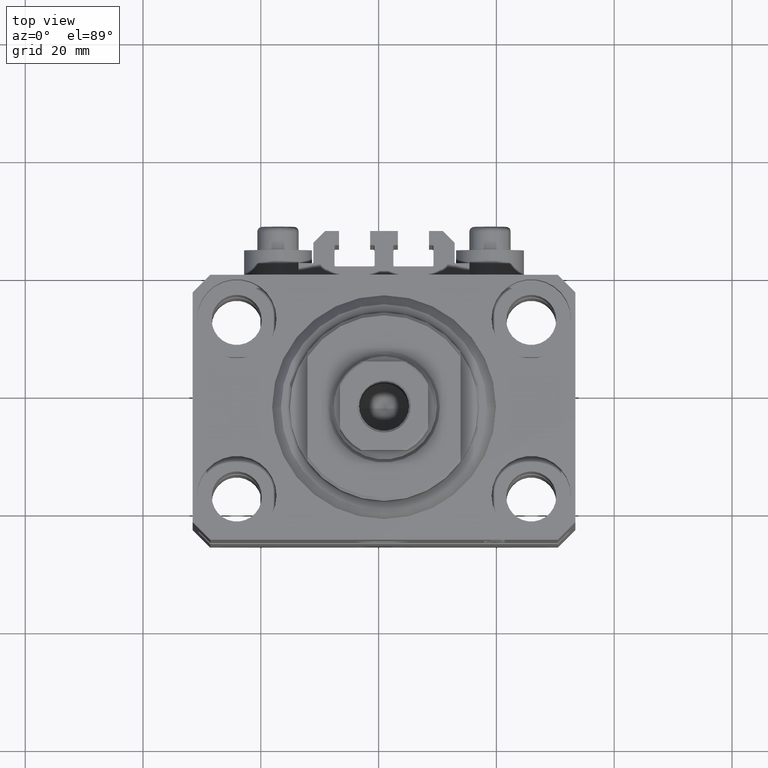
[diagram: clean part render]
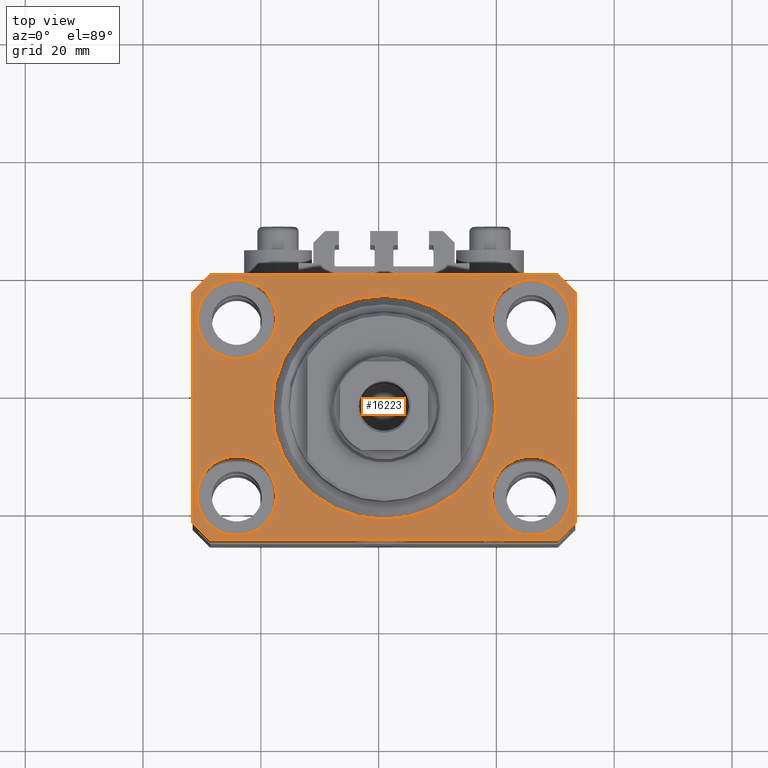
[diagram: same view with one face highlighted and labeled with its STEP entity id]
A machine part, top view. The second image highlights one B-rep face of the part: STEP entity #16223.
In plain terms, the highlighted planar face has unit normal (0, 0, 1).
Its self-contained STEP definition (entity closure, byte-faithful):
#100 = CARTESIAN_POINT ( 'NONE',  ( 29.49999999999707967, 22.49999999999951328, 0.000000000000000000 ) ) ;
#631 = VERTEX_POINT ( 'NONE', #6732 ) ;
#900 = CARTESIAN_POINT ( 'NONE',  ( 18.25000000004154543, 15.00000000000000888, 0.000000000000000000 ) ) ;
#1019 = CIRCLE ( 'NONE', #14624, 6.750000000041541881 ) ;
#1318 = EDGE_CURVE ( 'NONE', #8552, #30658, #36185, .T. ) ;
#1592 = ORIENTED_EDGE ( 'NONE', *, *, #40249, .F. ) ;
#2026 = AXIS2_PLACEMENT_3D ( 'NONE', #26744, #41509, #41748 ) ;
#2224 = CARTESIAN_POINT ( 'NONE',  ( -31.75000000004154899, -15.00000000000000000, 0.000000000000000000 ) ) ;
#2565 = EDGE_CURVE ( 'NONE', #631, #39402, #3594, .T. ) ;
#2705 = EDGE_CURVE ( 'NONE', #17058, #5536, #15032, .T. ) ;
#2988 = DIRECTION ( 'NONE',  ( 1.000000000000000000, 0.000000000000000000, 0.000000000000000000 ) ) ;
#3174 = DIRECTION ( 'NONE',  ( 0.000000000000000000, 0.000000000000000000, 1.000000000000000000 ) ) ;
#3488 = DIRECTION ( 'NONE',  ( 1.000000000000000000, 0.000000000000000000, 0.000000000000000000 ) ) ;
#3594 = CIRCLE ( 'NONE', #17313, 6.749999999958452790 ) ;
#3698 = CARTESIAN_POINT ( 'NONE',  ( -32.49999999999650413, -19.49999999999949907, 0.000000000000000000 ) ) ;
#4016 = AXIS2_PLACEMENT_3D ( 'NONE', #22827, #37361, #33316 ) ;
#4060 = CARTESIAN_POINT ( 'NONE',  ( -25.00000000000000355, 15.00000000000000000, 0.000000000000000000 ) ) ;
#4380 = EDGE_CURVE ( 'NONE', #20125, #17135, #45980, .T. ) ;
#4529 = CARTESIAN_POINT ( 'NONE',  ( 32.49999999999651124, -19.49999999999949196, 0.000000000000000000 ) ) ;
#4703 = CARTESIAN_POINT ( 'NONE',  ( 19.00000000000000000, 0.000000000000000000, 0.000000000000000000 ) ) ;
#4776 = EDGE_CURVE ( 'NONE', #39402, #631, #25008, .T. ) ;
#5001 = DIRECTION ( 'NONE',  ( 1.000000000000000000, 0.000000000000000000, 0.000000000000000000 ) ) ;
#5536 = VERTEX_POINT ( 'NONE', #19082 ) ;
#5578 = AXIS2_PLACEMENT_3D ( 'NONE', #12441, #42486, #31281 ) ;
#5635 = DIRECTION ( 'NONE',  ( 0.000000000000000000, 0.000000000000000000, 1.000000000000000000 ) ) ;
#5735 = ORIENTED_EDGE ( 'NONE', *, *, #2705, .F. ) ;
#6670 = VERTEX_POINT ( 'NONE', #18162 ) ;
#6732 = CARTESIAN_POINT ( 'NONE',  ( 31.74999999995845101, 15.00000000000000888, 0.000000000000000000 ) ) ;
#6851 = CARTESIAN_POINT ( 'NONE',  ( 29.49999999999650413, -22.49999999999949196, 0.000000000000000000 ) ) ;
#7312 = ORIENTED_EDGE ( 'NONE', *, *, #42420, .T. ) ;
#7613 = CARTESIAN_POINT ( 'NONE',  ( -32.49999999999650413, 19.49999999999949907, 0.000000000000000000 ) ) ;
#7960 = EDGE_LOOP ( 'NONE', ( #22281, #42460 ) ) ;
#8514 = CIRCLE ( 'NONE', #16904, 6.750000000022533087 ) ;
#8552 = VERTEX_POINT ( 'NONE', #29850 ) ;
#8705 = DIRECTION ( 'NONE',  ( 1.000000000000000000, 0.000000000000000000, 0.000000000000000000 ) ) ;
#8888 = VECTOR ( 'NONE', #28338, 1000.000000000000000 ) ;
#9084 = DIRECTION ( 'NONE',  ( 1.334402673828349134E-14, 1.000000000000000000, 0.000000000000000000 ) ) ;
#9295 = CIRCLE ( 'NONE', #13859, 6.750000000022533087 ) ;
#9678 = DIRECTION ( 'NONE',  ( 0.000000000000000000, 0.000000000000000000, 1.000000000000000000 ) ) ;
#9749 = VECTOR ( 'NONE', #24046, 1000.000000000000000 ) ;
#9884 = ORIENTED_EDGE ( 'NONE', *, *, #18870, .F. ) ;
#9954 = CARTESIAN_POINT ( 'NONE',  ( 32.49999999999702993, 19.49999999999945999, 0.000000000000000000 ) ) ;
#10286 = EDGE_LOOP ( 'NONE', ( #28086, #19521 ) ) ;
#11437 = CARTESIAN_POINT ( 'NONE',  ( -29.49999999999650413, -22.49999999999949907, 0.000000000000000000 ) ) ;
#11725 = CIRCLE ( 'NONE', #36858, 6.750000000041541881 ) ;
#11835 = FACE_BOUND ( 'NONE', #36906, .T. ) ;
#12025 = AXIS2_PLACEMENT_3D ( 'NONE', #24690, #21349, #39225 ) ;
#12416 = ORIENTED_EDGE ( 'NONE', *, *, #4380, .T. ) ;
#12441 = CARTESIAN_POINT ( 'NONE',  ( 25.00000000000000355, -15.00000000000000000, 0.000000000000000000 ) ) ;
#12647 = ORIENTED_EDGE ( 'NONE', *, *, #30534, .T. ) ;
#12673 = DIRECTION ( 'NONE',  ( -0.7071067811865474617, -0.7071067811865474617, 0.000000000000000000 ) ) ;
#13301 = CARTESIAN_POINT ( 'NONE',  ( -19.00000000000000000, 2.326828918379970970E-15, 0.000000000000000000 ) ) ;
#13859 = AXIS2_PLACEMENT_3D ( 'NONE', #17808, #46424, #3488 ) ;
#14144 = LINE ( 'NONE', #28705, #47046 ) ;
#14194 = DIRECTION ( 'NONE',  ( 1.000000000000000000, 0.000000000000000000, 0.000000000000000000 ) ) ;
#14624 = AXIS2_PLACEMENT_3D ( 'NONE', #39429, #3174, #17735 ) ;
#14883 = DIRECTION ( 'NONE',  ( -1.000000000000000000, -2.352167425053553784E-16, 0.000000000000000000 ) ) ;
#15032 = CIRCLE ( 'NONE', #21126, 6.749999999977465137 ) ;
#15216 = EDGE_LOOP ( 'NONE', ( #5735, #9884 ) ) ;
#15426 = FACE_BOUND ( 'NONE', #7960, .T. ) ;
#15665 = ORIENTED_EDGE ( 'NONE', *, *, #34061, .F. ) ;
#15740 = DIRECTION ( 'NONE',  ( 0.000000000000000000, 0.000000000000000000, 1.000000000000000000 ) ) ;
#15790 = LINE ( 'NONE', #41772, #20334 ) ;
#16223 = ADVANCED_FACE ( 'NONE', ( #44535, #29742, #15426, #44766, #11835, #33083 ), #26405, .T. ) ;
#16405 = VECTOR ( 'NONE', #9084, 1000.000000000000000 ) ;
#16730 = CARTESIAN_POINT ( 'NONE',  ( 32.49999999999651124, -19.49999999999949196, 0.000000000000000000 ) ) ;
#16904 = AXIS2_PLACEMENT_3D ( 'NONE', #4060, #15740, #5001 ) ;
#17025 = CIRCLE ( 'NONE', #5578, 6.749999999977465137 ) ;
#17058 = VERTEX_POINT ( 'NONE', #31911 ) ;
#17135 = VERTEX_POINT ( 'NONE', #34552 ) ;
#17313 = AXIS2_PLACEMENT_3D ( 'NONE', #34023, #5635, #34728 ) ;
#17735 = DIRECTION ( 'NONE',  ( 1.000000000000000000, 0.000000000000000000, 0.000000000000000000 ) ) ;
#17776 = EDGE_LOOP ( 'NONE', ( #7312, #12647, #39399, #41445, #31060, #40352, #18592, #12416 ) ) ;
#17808 = CARTESIAN_POINT ( 'NONE',  ( -25.00000000000000355, 15.00000000000000000, 0.000000000000000000 ) ) ;
#18162 = CARTESIAN_POINT ( 'NONE',  ( -32.49999999999650413, 19.49999999999949907, 0.000000000000000000 ) ) ;
#18592 = ORIENTED_EDGE ( 'NONE', *, *, #26378, .T. ) ;
#18608 = CARTESIAN_POINT ( 'NONE',  ( -31.75000000002253842, 15.00000000000000000, 0.000000000000000000 ) ) ;
#18705 = LINE ( 'NONE', #100, #28415 ) ;
#18722 = EDGE_CURVE ( 'NONE', #23000, #45112, #1019, .T. ) ;
#18870 = EDGE_CURVE ( 'NONE', #5536, #17058, #17025, .T. ) ;
#19082 = CARTESIAN_POINT ( 'NONE',  ( 18.25000000002253842, -15.00000000000000000, 0.000000000000000000 ) ) ;
#19147 = ORIENTED_EDGE ( 'NONE', *, *, #38636, .F. ) ;
#19487 = VERTEX_POINT ( 'NONE', #11437 ) ;
#19521 = ORIENTED_EDGE ( 'NONE', *, *, #18722, .F. ) ;
#20125 = VERTEX_POINT ( 'NONE', #44667 ) ;
#20334 = VECTOR ( 'NONE', #12673, 1000.000000000000114 ) ;
#20670 = CARTESIAN_POINT ( 'NONE',  ( 25.00000000000000355, -15.00000000000000000, 0.000000000000000000 ) ) ;
#20960 = DIRECTION ( 'NONE',  ( 0.7071067811865474617, -0.7071067811865474617, 0.000000000000000000 ) ) ;
#21126 = AXIS2_PLACEMENT_3D ( 'NONE', #20670, #9678, #2988 ) ;
#21349 = DIRECTION ( 'NONE',  ( 0.000000000000000000, 0.000000000000000000, 1.000000000000000000 ) ) ;
#22168 = DIRECTION ( 'NONE',  ( 0.000000000000000000, -1.000000000000000000, 0.000000000000000000 ) ) ;
#22281 = ORIENTED_EDGE ( 'NONE', *, *, #2565, .F. ) ;
#22606 = CIRCLE ( 'NONE', #2026, 19.00000000000000000 ) ;
#22827 = CARTESIAN_POINT ( 'NONE',  ( 0.000000000000000000, 0.000000000000000000, 0.000000000000000000 ) ) ;
#23000 = VERTEX_POINT ( 'NONE', #2224 ) ;
#23962 = EDGE_CURVE ( 'NONE', #45112, #23000, #11725, .T. ) ;
#24046 = DIRECTION ( 'NONE',  ( -0.7071067811865352493, 0.7071067811865597852, 0.000000000000000000 ) ) ;
#24134 = VECTOR ( 'NONE', #20960, 1000.000000000000114 ) ;
#24690 = CARTESIAN_POINT ( 'NONE',  ( 24.99999999999999645, 15.00000000000000888, 0.000000000000000000 ) ) ;
#24964 = CARTESIAN_POINT ( 'NONE',  ( -18.24999999995846167, -15.00000000000000000, 0.000000000000000000 ) ) ;
#25008 = CIRCLE ( 'NONE', #12025, 6.749999999958452790 ) ;
#25984 = LINE ( 'NONE', #7613, #36374 ) ;
#26378 = EDGE_CURVE ( 'NONE', #30658, #20125, #44481, .T. ) ;
#26405 = PLANE ( 'NONE',  #4016 ) ;
#26744 = CARTESIAN_POINT ( 'NONE',  ( 0.000000000000000000, 0.000000000000000000, 0.000000000000000000 ) ) ;
#28052 = DIRECTION ( 'NONE',  ( 0.000000000000000000, 0.000000000000000000, 1.000000000000000000 ) ) ;
#28086 = ORIENTED_EDGE ( 'NONE', *, *, #23962, .F. ) ;
#28261 = VERTEX_POINT ( 'NONE', #3698 ) ;
#28282 = CARTESIAN_POINT ( 'NONE',  ( -25.00000000000000355, -15.00000000000000000, 0.000000000000000000 ) ) ;
#28338 = DIRECTION ( 'NONE',  ( 0.7071067811865483499, 0.7071067811865466846, 0.000000000000000000 ) ) ;
#28415 = VECTOR ( 'NONE', #14883, 1000.000000000000000 ) ;
#28687 = EDGE_LOOP ( 'NONE', ( #46944, #1592 ) ) ;
#28705 = CARTESIAN_POINT ( 'NONE',  ( -29.49999999999650413, -22.49999999999949907, 0.000000000000000000 ) ) ;
#28823 = CARTESIAN_POINT ( 'NONE',  ( -32.49999999999650413, -19.49999999999949907, 0.000000000000000000 ) ) ;
#29095 = VERTEX_POINT ( 'NONE', #31223 ) ;
#29742 = FACE_BOUND ( 'NONE', #15216, .T. ) ;
#29850 = CARTESIAN_POINT ( 'NONE',  ( 29.49999999999650413, -22.49999999999949196, 0.000000000000000000 ) ) ;
#30534 = EDGE_CURVE ( 'NONE', #31606, #6670, #15790, .T. ) ;
#30640 = CARTESIAN_POINT ( 'NONE',  ( 0.000000000000000000, 0.000000000000000000, 0.000000000000000000 ) ) ;
#30658 = VERTEX_POINT ( 'NONE', #4529 ) ;
#30914 = EDGE_CURVE ( 'NONE', #28261, #19487, #42647, .T. ) ;
#30984 = VERTEX_POINT ( 'NONE', #4703 ) ;
#31060 = ORIENTED_EDGE ( 'NONE', *, *, #31296, .T. ) ;
#31223 = CARTESIAN_POINT ( 'NONE',  ( -18.24999999997747224, 15.00000000000000000, 0.000000000000000000 ) ) ;
#31281 = DIRECTION ( 'NONE',  ( 1.000000000000000000, 0.000000000000000000, 0.000000000000000000 ) ) ;
#31296 = EDGE_CURVE ( 'NONE', #19487, #8552, #14144, .T. ) ;
#31606 = VERTEX_POINT ( 'NONE', #40306 ) ;
#31911 = CARTESIAN_POINT ( 'NONE',  ( 31.74999999997746869, -15.00000000000000000, 0.000000000000000000 ) ) ;
#33083 = FACE_OUTER_BOUND ( 'NONE', #17776, .T. ) ;
#33316 = DIRECTION ( 'NONE',  ( 1.000000000000000000, 0.000000000000000000, -0.000000000000000000 ) ) ;
#34023 = CARTESIAN_POINT ( 'NONE',  ( 24.99999999999999645, 15.00000000000000888, 0.000000000000000000 ) ) ;
#34061 = EDGE_CURVE ( 'NONE', #46087, #30984, #22606, .T. ) ;
#34552 = CARTESIAN_POINT ( 'NONE',  ( 29.49999999999707967, 22.49999999999951328, 0.000000000000000000 ) ) ;
#34728 = DIRECTION ( 'NONE',  ( 1.000000000000000000, 0.000000000000000000, 0.000000000000000000 ) ) ;
#35326 = EDGE_CURVE ( 'NONE', #6670, #28261, #25984, .T. ) ;
#36185 = LINE ( 'NONE', #6851, #8888 ) ;
#36374 = VECTOR ( 'NONE', #22168, 1000.000000000000000 ) ;
#36858 = AXIS2_PLACEMENT_3D ( 'NONE', #28282, #28052, #14194 ) ;
#36906 = EDGE_LOOP ( 'NONE', ( #19147, #15665 ) ) ;
#37361 = DIRECTION ( 'NONE',  ( 0.000000000000000000, 0.000000000000000000, 1.000000000000000000 ) ) ;
#37954 = DIRECTION ( 'NONE',  ( 1.000000000000000000, 1.176083712526788232E-16, 0.000000000000000000 ) ) ;
#38636 = EDGE_CURVE ( 'NONE', #30984, #46087, #44270, .T. ) ;
#38997 = EDGE_CURVE ( 'NONE', #29095, #43926, #8514, .T. ) ;
#39225 = DIRECTION ( 'NONE',  ( 1.000000000000000000, 0.000000000000000000, 0.000000000000000000 ) ) ;
#39399 = ORIENTED_EDGE ( 'NONE', *, *, #35326, .T. ) ;
#39402 = VERTEX_POINT ( 'NONE', #900 ) ;
#39429 = CARTESIAN_POINT ( 'NONE',  ( -25.00000000000000355, -15.00000000000000000, 0.000000000000000000 ) ) ;
#40249 = EDGE_CURVE ( 'NONE', #43926, #29095, #9295, .T. ) ;
#40306 = CARTESIAN_POINT ( 'NONE',  ( -29.49999999999650413, 22.49999999999949907, 0.000000000000000000 ) ) ;
#40352 = ORIENTED_EDGE ( 'NONE', *, *, #1318, .T. ) ;
#41375 = DIRECTION ( 'NONE',  ( 0.000000000000000000, 0.000000000000000000, 1.000000000000000000 ) ) ;
#41445 = ORIENTED_EDGE ( 'NONE', *, *, #30914, .T. ) ;
#41509 = DIRECTION ( 'NONE',  ( 0.000000000000000000, 0.000000000000000000, 1.000000000000000000 ) ) ;
#41748 = DIRECTION ( 'NONE',  ( 1.000000000000000000, 0.000000000000000000, 0.000000000000000000 ) ) ;
#41772 = CARTESIAN_POINT ( 'NONE',  ( -29.49999999999650413, 22.49999999999949907, 0.000000000000000000 ) ) ;
#42420 = EDGE_CURVE ( 'NONE', #17135, #31606, #18705, .T. ) ;
#42460 = ORIENTED_EDGE ( 'NONE', *, *, #4776, .F. ) ;
#42486 = DIRECTION ( 'NONE',  ( 0.000000000000000000, 0.000000000000000000, 1.000000000000000000 ) ) ;
#42647 = LINE ( 'NONE', #28823, #24134 ) ;
#43926 = VERTEX_POINT ( 'NONE', #18608 ) ;
#44270 = CIRCLE ( 'NONE', #46543, 19.00000000000000000 ) ;
#44481 = LINE ( 'NONE', #16730, #16405 ) ;
#44535 = FACE_BOUND ( 'NONE', #10286, .T. ) ;
#44667 = CARTESIAN_POINT ( 'NONE',  ( 32.49999999999702993, 19.49999999999945999, 0.000000000000000000 ) ) ;
#44766 = FACE_BOUND ( 'NONE', #28687, .T. ) ;
#45112 = VERTEX_POINT ( 'NONE', #24964 ) ;
#45980 = LINE ( 'NONE', #9954, #9749 ) ;
#46087 = VERTEX_POINT ( 'NONE', #13301 ) ;
#46424 = DIRECTION ( 'NONE',  ( 0.000000000000000000, 0.000000000000000000, 1.000000000000000000 ) ) ;
#46543 = AXIS2_PLACEMENT_3D ( 'NONE', #30640, #41375, #8705 ) ;
#46944 = ORIENTED_EDGE ( 'NONE', *, *, #38997, .F. ) ;
#47046 = VECTOR ( 'NONE', #37954, 1000.000000000000000 ) ;